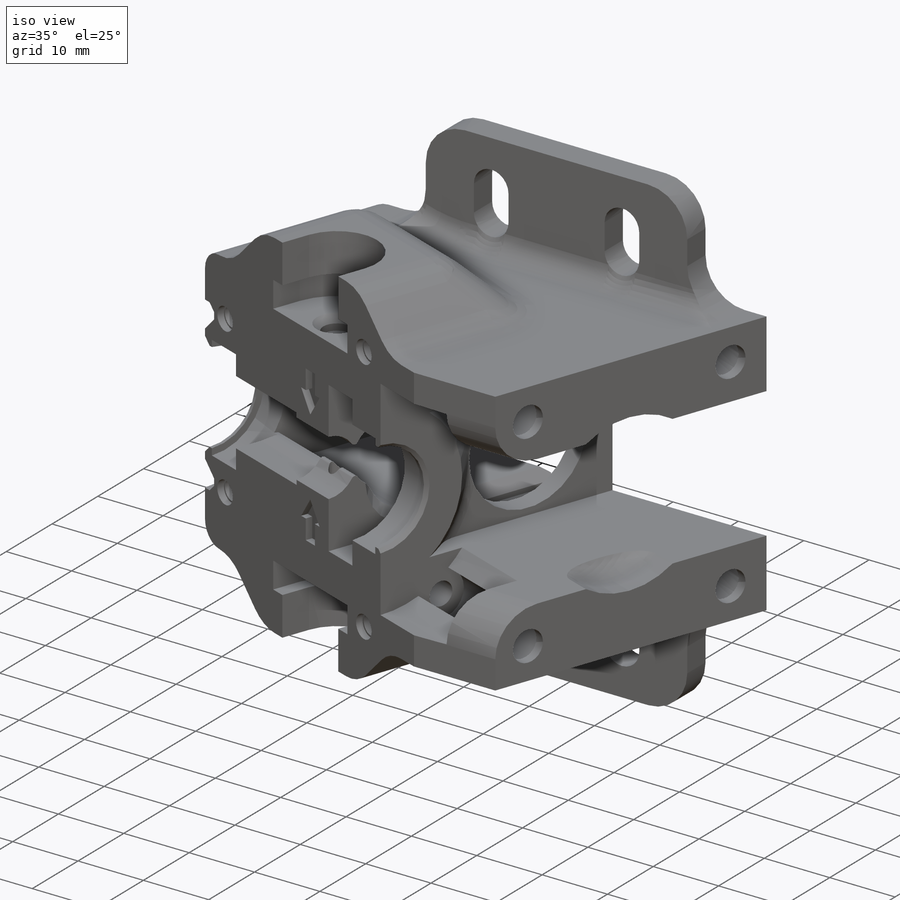
[diagram: iso view]
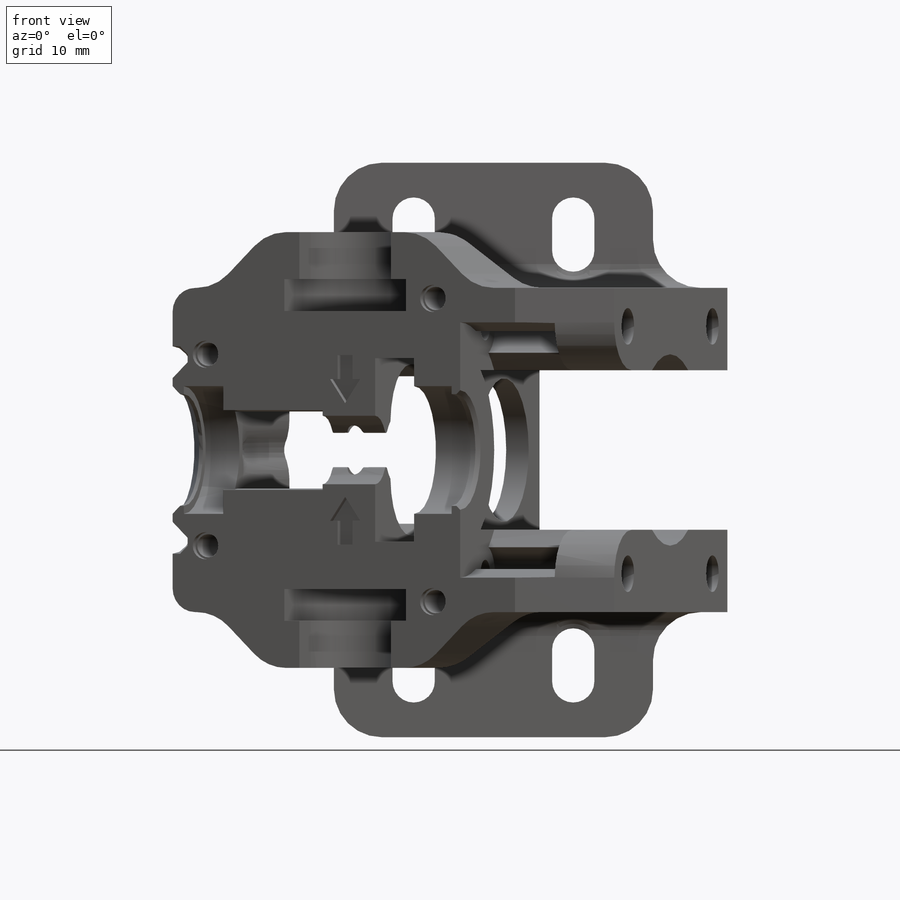
[diagram: front view]
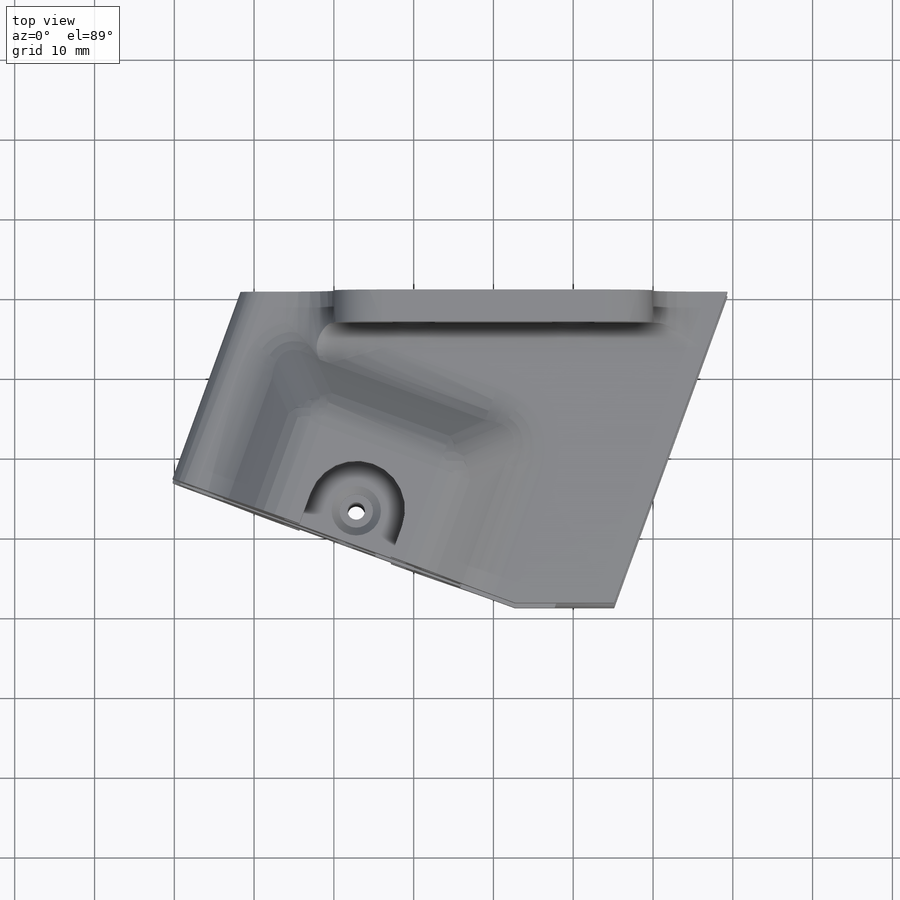
[diagram: top view]
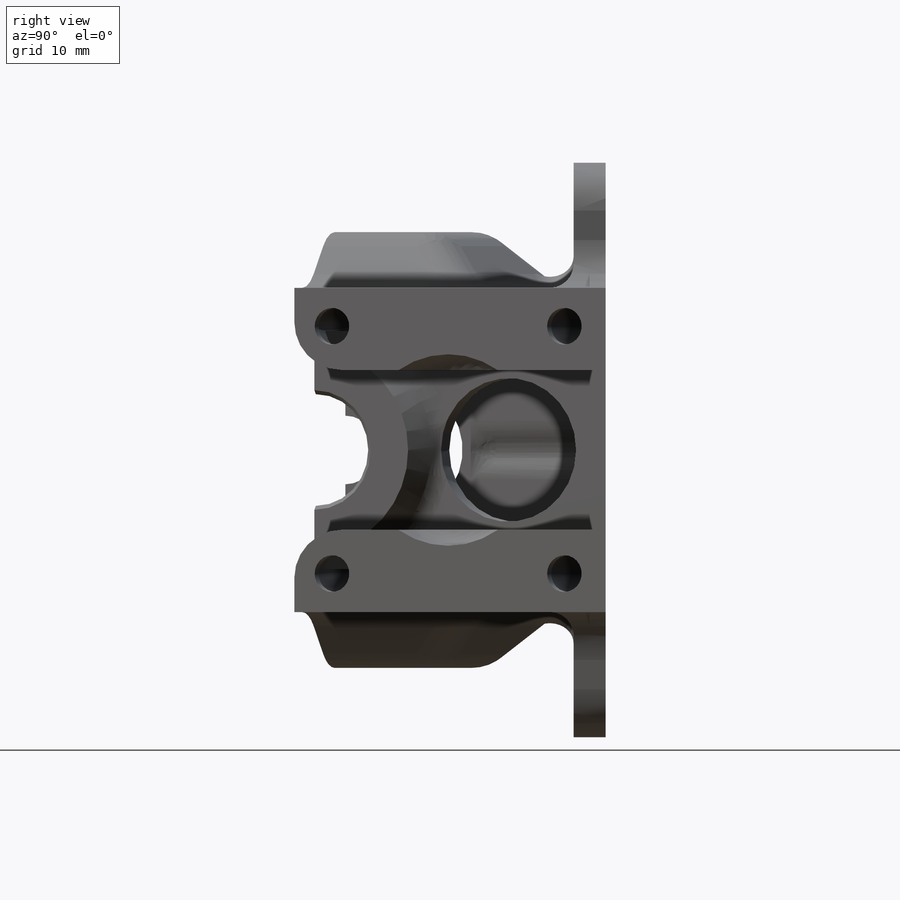
[diagram: right view]
SOLIDWORKS PART (.sldprt)
format: sldprt  version: not decoded by parser v0  size: 1,765,888 bytes
history: native  units: mm
features: sketch x44, cut_extrude x35, fillet x17, chamfer x9, extrude x7, mirror x3, plane x3, material x1 (+12 scaffold rows collapsed)
feature tree (131):
  scaffold x12  (default folders/planes/origin — collapsed)
  material  "Material <not specified>"
  sketch  "Sketch1"  dims[D1=2.65mm D2=40.0mm D3=4.0mm D4=10.0mm D5=72.0mm D6=7.0mm D7=~40.627562mm D8=~49.32429mm]
  extrude  "Boss-Extrude1"  Depth=4mm
  sketch  "Sketch2"  dims[D1=20.0mm D2=~25.76651mm]
  cut_extrude  "Cut-Extrude1"  [1 undecoded]
  sketch  "Sketch3"  dims[c1.D1=~9.32429mm c2.D1=70.0deg]
  cut_extrude  "Cut-Extrude2"  [1 undecoded]
  sketch  "Sketch4"  dims[D1=~45.75438mm D2=57.35mm]
  extrude  "Boss-Extrude2"  [1 undecoded]
  mirror  "Mirror1"
  sketch  "Sketch5"  dims[D1=20.0mm D2=~25.76651mm]
  cut_extrude  "Cut-Extrude3"  [1 undecoded]
  sketch  "Sketch6"  dims[c1.D1=4.6mm c1.D5=24.0mm c1.D2=5.5mm c1.D3=5.5mm c1.D4=31.0mm c2.D2=31.0mm]
  cut_extrude  "Cut-Extrude4"  [1 undecoded]
  plane  "Plane1"  Offset=1.5mm
  sketch  "Sketch7"  dims[D1=7.0mm]
  cut_extrude  "Cut-Extrude5"  Depth=19mm
  sketch  "Sketch9"  dims[D1=0.0mm D2=0.0mm]
  sketch  "Sketch10"  dims[D1=24.0mm]
  cut_extrude  "Cut-Extrude6"  Depth=7mm
  sketch  "Sketch11"  dims[D1=18.0mm]
  cut_extrude  "Cut-Extrude7"  Depth=3mm
  sketch  "Sketch12"  dims[D1=23.0mm]
  cut_extrude  "Cut-Extrude8"  Depth=5.2mm
  sketch  "Sketch15"  dims[D1=32.0mm]
  cut_extrude  "Cut-Extrude11"  Depth=7mm
  sketch  "Sketch16"  dims[D1=0.0mm]
  extrude  "Boss-Extrude4"  Depth=12mm
  sketch  "Sketch13"  dims[D2=14.0mm D1=0.0mm]
  cut_extrude  "Cut-Extrude9"  [1 undecoded]
  sketch  "Sketch14"  dims[D1=16.0mm]
  cut_extrude  "Cut-Extrude10"  Depth=5mm
  sketch  "Sketch17"  dims[D6=2.16mm D1=8.0mm D2=14.0mm D3=7.0mm D4=3.0mm D5=1.0mm D7=0.8mm]
  cut_extrude  "Cut-Extrude12"  [1 undecoded]
  sketch  "Sketch18"  dims[D1=8.6mm D2=8.0mm D3=0.5mm D4=1.8mm D5=0.8mm D6=0.8mm]
  cut_extrude  "Cut-Extrude13"  Depth=7mm
  sketch  "Sketch19"  dims[D2=10.0mm D3=0.8mm D1=0.0mm]
  cut_extrude  "Cut-Extrude14"  Depth=16mm
  sketch  "Sketch20"  dims[D1=16.0mm]
  cut_extrude  "Cut-Extrude15"  Depth=9.25mm
  sketch  "Sketch21"  dims[D1=14.0mm]
  cut_extrude  "Cut-Extrude16"  [1 undecoded]
  sketch  "Sketch24"  dims[c1.D2=~12.002859mm c2.D2=30.0deg c2.D1=18.5mm c3.D2=18.0mm c3.D1=0.0mm]
  cut_extrude  "Cut-Extrude17"  Depth=21mm
  sketch  "Sketch25"
  cut_extrude  "Cut-Extrude18"  [1 undecoded]
  sketch  "Sketch34"
  extrude  "Boss-Extrude8"  Depth=2.25mm
  sketch  "Sketch26"  dims[D1=3.1mm]
  cut_extrude  "Cut-Extrude19"  Depth=2.25mm
  sketch  "Sketch28"  dims[D1=15.0mm D2=20.7mm D3=15.0mm]
  extrude  "Boss-Extrude6"  Depth=7mm
  sketch  "Sketch31"  dims[D3=3.5mm D4=~2.824559mm D1=0.0mm D2=0.0mm]
  extrude  "Boss-Extrude7"  [1 undecoded]
  sketch  "Sketch29"  dims[D1=12.2mm D2=4.78mm]
  cut_extrude  "Cut-Extrude21"  Depth=9.9mm
  plane  "Plane2"  Offset=5.9mm
  sketch  "Sketch32"  dims[D1=2.0mm]
  cut_extrude  "Cut-Extrude22"  [1 undecoded]
  mirror  "Mirror2"
  fillet  "Fillet2"  Radius=1mm
  sketch  "Sketch33"  dims[D1=3.0mm]
  fillet  "Fillet3"  Radius=2.35mm
  chamfer  "Chamfer1"  Distance=7mm Angle=45deg
  chamfer  "Chamfer2"  Distance=3.5mm Angle=45deg
  fillet  "Fillet4"  Radius=3mm
  fillet  "Fillet5"  Radius=3.5mm
  sketch  "Sketch35"  dims[D1=7.0mm]
  cut_extrude  "Cut-Extrude23"  Depth=1.4mm
  sketch  "Sketch36"  dims[D2=3.4mm D1=38.0mm D3=24.0mm D4=2.625mm]
  cut_extrude  "Cut-Extrude24"  Depth=1mm
  sketch  "Sketch37"  dims[D1=2.9mm]
  cut_extrude  "Cut-Extrude25"  Depth=17mm
  plane  "Plane3"  Offset=39mm
  sketch  "Sketch38"
  cut_extrude  "Cut-Extrude26"  Depth=17mm
  fillet  "Fillet6"  Radius=6mm
  fillet  "Fillet7"  Radius=6mm
  fillet  "Fillet8"  Radius=6mm
  sketch  "Sketch40"  dims[D3=12.0mm D4=6.0mm D1=2.0mm D2=4.0mm]
  cut_extrude  "Cut-Extrude27"  Depth=2mm
  chamfer  "Chamfer3"  Distance=2mm Angle=45deg
  fillet  "Fillet9"  Radius=3mm
  chamfer  "Chamfer4"  Distance=1mm Angle=45deg
  fillet  "Fillet10"  Radius=3mm
  sketch  "Sketch41"  dims[D1=1.5mm]
  cut_extrude  "Cut-Extrude28"  Depth=0.4mm
  fillet  "Fillet11"  Radius=3mm
  chamfer  "Chamfer5"  Distance=1mm Angle=45deg
  chamfer  "Chamfer6"  Distance=0.5mm Angle=45deg
  sketch  "Sketch42"  dims[D1=0.0mm]
  cut_extrude  "Cut-Extrude29"  Depth=0.25mm
  chamfer  "Chamfer7"  Distance=0.8mm Angle=45deg
  cut_extrude  "Cut-Extrude31"  [1 undecoded]
  sketch  "Sketch43"  dims[D1=19.5mm]
  fillet  "Fillet12"  Radius=10mm
  fillet  "Fillet13"  Radius=10mm
  sketch  "Sketch44"
  cut_extrude  "Cut-Extrude32"  [1 undecoded]
  fillet  "Fillet15"  Radius=0.5mm
  sketch  "Sketch45"  dims[D2=6.0mm D1=20.0mm D3=24.3mm]
  cut_extrude  "Cut-Extrude33"  Depth=18mm
  fillet  "Fillet16"  Radius=5mm
  sketch  "Sketch46"
  extrude  "Boss-Extrude9"  Depth=2mm
  fillet  "Fillet17"  Radius=5mm
  sketch  "Sketch48"
  cut_extrude  "Cut-Extrude34"  [1 undecoded]
  fillet  "Fillet18"  Radius=10mm
  fillet  "Fillet20"  Radius=4mm
  sketch  "Sketch49"  dims[c1.D2=6.0mm c1.D3=8.0mm c2.D2=~4.850523mm c2.D4=1.5mm c2.D1=0.0mm]
  cut_extrude  "Cut-Extrude35"  [1 undecoded]
  sketch  "Sketch50"  dims[D1=2.0mm D2=4.0mm D3=3.0mm D4=3.5mm D5=3.0mm]
  cut_extrude  "Cut-Extrude36"  Depth=1mm
  sketch  "Sketch51"  dims[D1=4.2mm]
  cut_extrude  "Cut-Extrude37"  Depth=2mm
  mirror  "Mirror3"
  chamfer  "Chamfer8"  Distance=1mm Angle=45deg
  chamfer  "Chamfer9"  Distance=1.5mm Angle=45deg
decode coverage: 91 of 115 modeling features carry decoded parameters
note: ~ marks probable driven/reference dimensions
note: 15 parameter values undecoded
summary: no parameter record found for 15 features
note: suppression state not decoded; provenance and decode notes live in map.json
